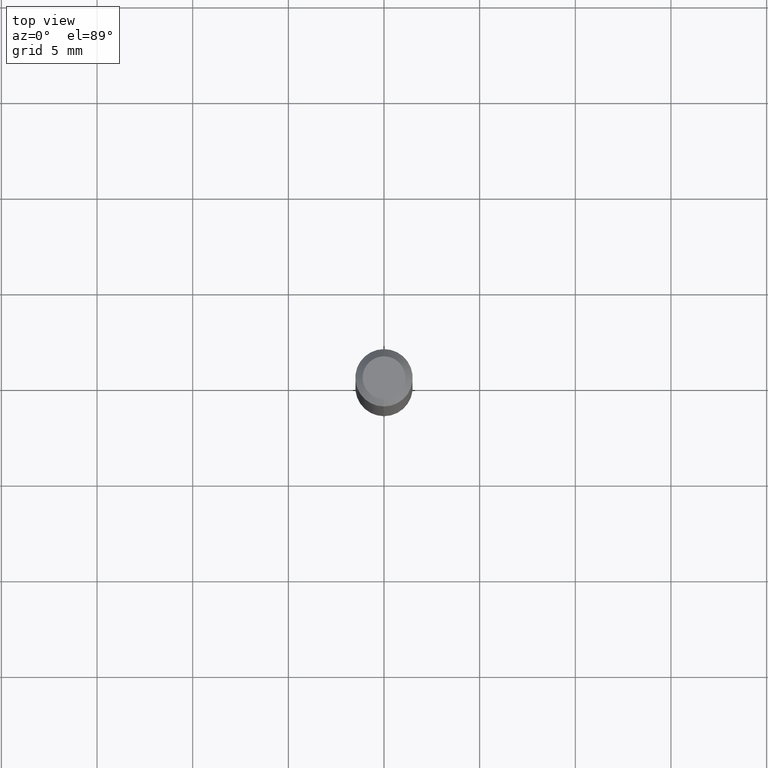
[diagram: clean part render]
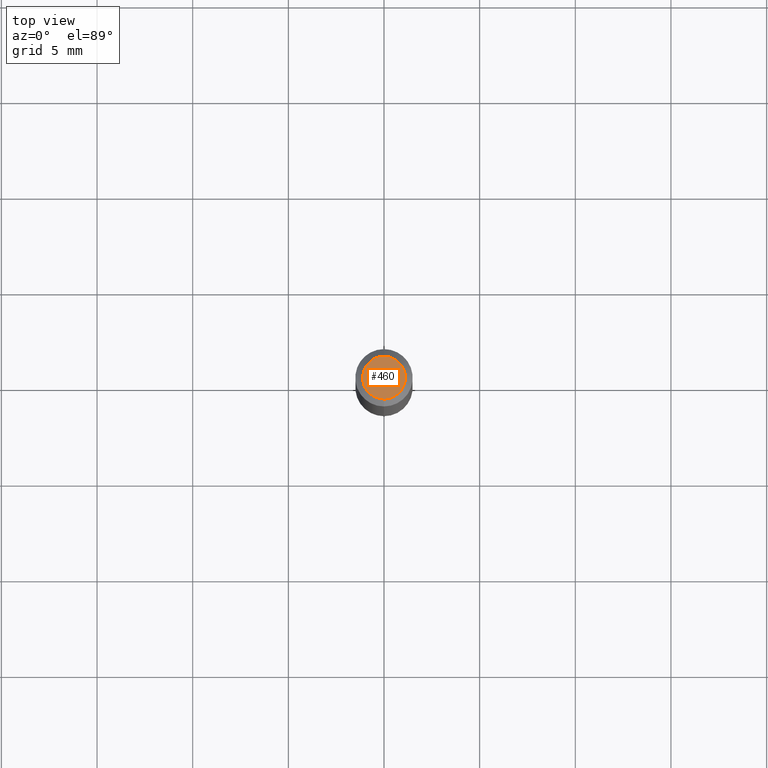
[diagram: same view with one face highlighted and labeled with its STEP entity id]
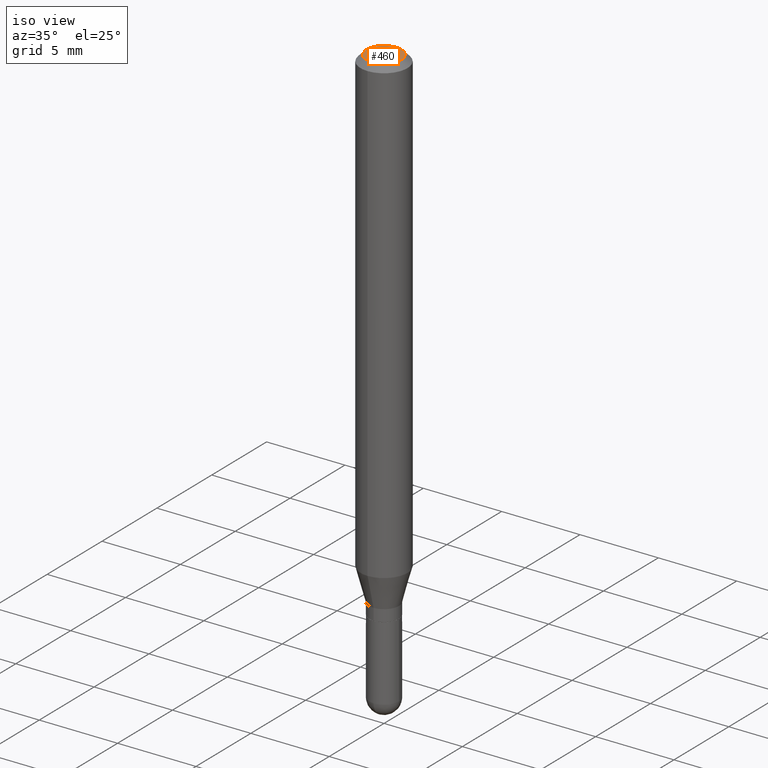
[diagram: same view with one face highlighted and labeled with its STEP entity id]
A machine part, top view. The second image highlights one B-rep face of the part: STEP entity #460.
A second angle (iso view) of the same face is appended — the face is thin or edge-on in the first view.
In plain terms, the highlighted planar face has unit normal (0, -0, -1).
Its self-contained STEP definition (entity closure, byte-faithful):
#8 = DIRECTION ( 'NONE',  ( 2.445484334717468627E-29, -3.491459101101016620E-15, -1.000000000000000000 ) ) ;
#49 = ORIENTED_EDGE ( 'NONE', *, *, #58, .T. ) ;
#50 = DIRECTION ( 'NONE',  ( -2.445484334717468907E-29, 3.491459101101016620E-15, 1.000000000000000000 ) ) ;
#57 = CARTESIAN_POINT ( 'NONE',  ( 2.241672595606278768E-45, -3.200473654443799496E-31, -9.166579248872037308E-17 ) ) ;
#58 = EDGE_CURVE ( 'NONE', #274, #344, #348, .T. ) ;
#67 = AXIS2_PLACEMENT_3D ( 'NONE', #57, #50, #218 ) ;
#75 = CARTESIAN_POINT ( 'NONE',  ( -3.536586717851222218E-16, -0.04404999999999999888, 6.213298091477938012E-17 ) ) ;
#115 = DIRECTION ( 'NONE',  ( -2.445484334717468907E-29, 3.491459101101016620E-15, 1.000000000000000000 ) ) ;
#129 = AXIS2_PLACEMENT_3D ( 'NONE', #359, #8, #257 ) ;
#154 = DIRECTION ( 'NONE',  ( -6.982962677686265133E-15, -1.000000000000000000, 3.491459101101016226E-15 ) ) ;
#183 = CARTESIAN_POINT ( 'NONE',  ( 3.599717260347271507E-16, 0.04404999999999999888, -2.454645658922201386E-16 ) ) ;
#200 = EDGE_LOOP ( 'NONE', ( #277, #49 ) ) ;
#218 = DIRECTION ( 'NONE',  ( -6.982962677686265133E-15, -1.000000000000000000, 3.491459101101016226E-15 ) ) ;
#225 = CARTESIAN_POINT ( 'NONE',  ( 2.241672595606278768E-45, -3.200473654443799496E-31, -9.166579248872037308E-17 ) ) ;
#240 = AXIS2_PLACEMENT_3D ( 'NONE', #225, #115, #154 ) ;
#257 = DIRECTION ( 'NONE',  ( 6.982962677686265922E-15, 1.000000000000000000, -3.491459101101016620E-15 ) ) ;
#274 = VERTEX_POINT ( 'NONE', #75 ) ;
#277 = ORIENTED_EDGE ( 'NONE', *, *, #426, .T. ) ;
#324 = PLANE ( 'NONE',  #129 ) ;
#344 = VERTEX_POINT ( 'NONE', #183 ) ;
#348 = CIRCLE ( 'NONE', #240, 0.04404999999999999888 ) ;
#359 = CARTESIAN_POINT ( 'NONE',  ( 3.075995059520799729E-16, 0.04404999999999999888, -1.996316696478599582E-16 ) ) ;
#367 = FACE_OUTER_BOUND ( 'NONE', #200, .T. ) ;
#426 = EDGE_CURVE ( 'NONE', #344, #274, #508, .T. ) ;
#460 = ADVANCED_FACE ( 'NONE', ( #367 ), #324, .F. ) ;
#508 = CIRCLE ( 'NONE', #67, 0.04404999999999999888 ) ;